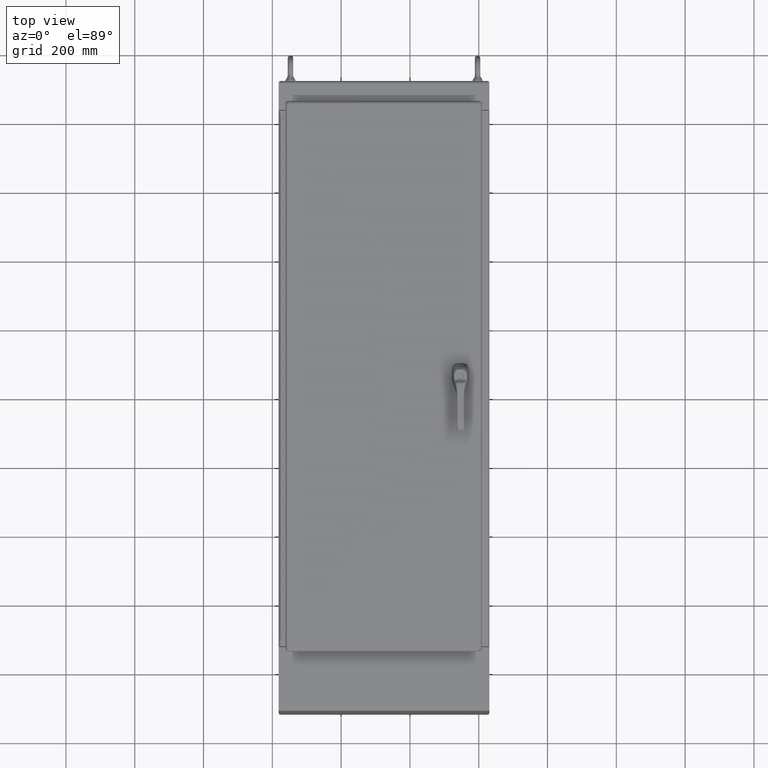
[diagram: clean part render]
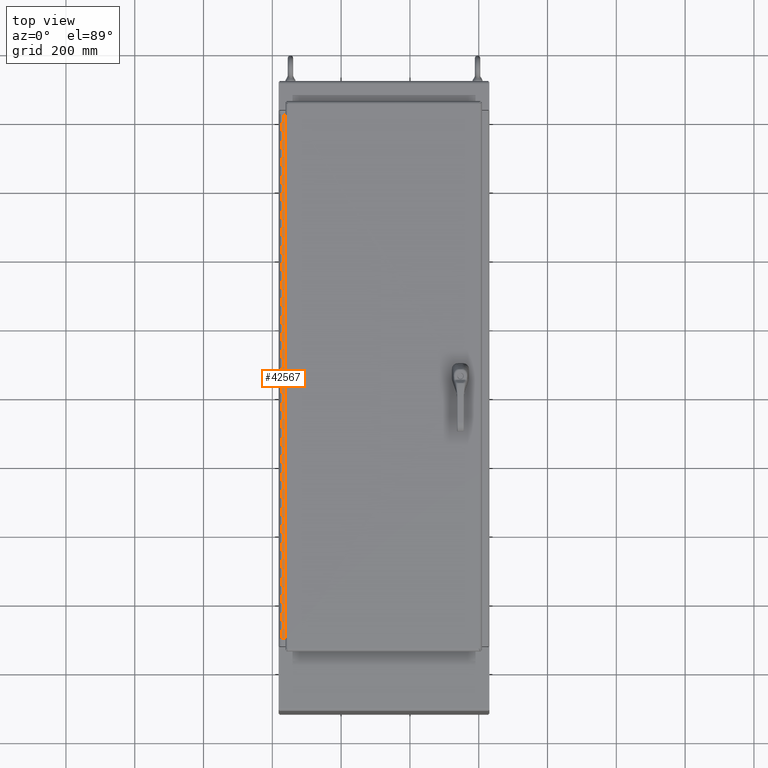
[diagram: same view with one face highlighted and labeled with its STEP entity id]
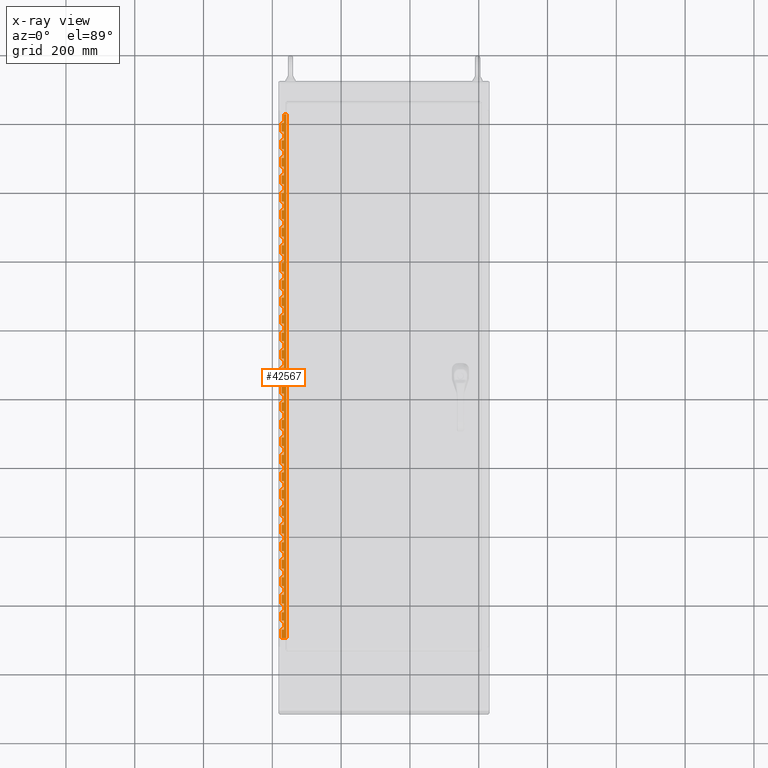
[diagram: x-ray of the same camera — body ghosted, the highlighted face saturated]
A machine part, top view. The second image highlights one B-rep face of the part: STEP entity #42567.
The next image is the same camera in x-ray: the body ghosted, the highlighted face saturated — about 0% of this face is hidden behind the body in this view.
In plain terms, the highlighted planar face has unit normal (0, -0, 1).
Its self-contained STEP definition (entity closure, byte-faithful):
#2580=PLANE('',#46464);
#3881=FACE_OUTER_BOUND('',#6546,.T.);
#6546=EDGE_LOOP('',(#31092,#31093,#31094,#31095,#31096,#31097,#31098,#31099,
#31100,#31101,#31102,#31103,#31104,#31105,#31106,#31107,#31108,#31109,#31110,
#31111,#31112,#31113,#31114,#31115,#31116,#31117,#31118,#31119,#31120,#31121,
#31122,#31123,#31124,#31125,#31126,#31127,#31128,#31129,#31130,#31131,#31132,
#31133,#31134,#31135,#31136,#31137,#31138,#31139,#31140,#31141,#31142,#31143,
#31144,#31145,#31146,#31147,#31148,#31149,#31150,#31151,#31152,#31153,#31154,
#31155,#31156,#31157,#31158,#31159,#31160,#31161,#31162,#31163,#31164,#31165,
#31166,#31167,#31168,#31169,#31170,#31171,#31172,#31173,#31174,#31175,#31176,
#31177,#31178,#31179,#31180,#31181,#31182,#31183,#31184,#31185,#31186,#31187,
#31188,#31189,#31190,#31191,#31192,#31193,#31194,#31195,#31196,#31197,#31198,
#31199,#31200,#31201,#31202,#31203,#31204,#31205,#31206,#31207,#31208,#31209,
#31210,#31211,#31212,#31213));
#12074=LINE('',#66152,#15366);
#12077=LINE('',#66158,#15369);
#12081=LINE('',#66173,#15373);
#12084=LINE('',#66181,#15376);
#12087=LINE('',#66187,#15379);
#12091=LINE('',#66202,#15383);
#12094=LINE('',#66210,#15386);
#12097=LINE('',#66216,#15389);
#12101=LINE('',#66231,#15393);
#12104=LINE('',#66239,#15396);
#12107=LINE('',#66245,#15399);
#12111=LINE('',#66260,#15403);
#12114=LINE('',#66268,#15406);
#12117=LINE('',#66274,#15409);
#12121=LINE('',#66289,#15413);
#12124=LINE('',#66297,#15416);
#12127=LINE('',#66303,#15419);
#12131=LINE('',#66318,#15423);
#12134=LINE('',#66326,#15426);
#12137=LINE('',#66332,#15429);
#12141=LINE('',#66347,#15433);
#12144=LINE('',#66355,#15436);
#12147=LINE('',#66361,#15439);
#12151=LINE('',#66376,#15443);
#12154=LINE('',#66384,#15446);
#12157=LINE('',#66390,#15449);
#12161=LINE('',#66405,#15453);
#12164=LINE('',#66413,#15456);
#12167=LINE('',#66419,#15459);
#12171=LINE('',#66434,#15463);
#12174=LINE('',#66442,#15466);
#12177=LINE('',#66448,#15469);
#12181=LINE('',#66463,#15473);
#12184=LINE('',#66471,#15476);
#12187=LINE('',#66477,#15479);
#12191=LINE('',#66492,#15483);
#12194=LINE('',#66500,#15486);
#12197=LINE('',#66506,#15489);
#12201=LINE('',#66521,#15493);
#12204=LINE('',#66529,#15496);
#12207=LINE('',#66535,#15499);
#12211=LINE('',#66550,#15503);
#12214=LINE('',#66558,#15506);
#12217=LINE('',#66564,#15509);
#12221=LINE('',#66579,#15513);
#12224=LINE('',#66587,#15516);
#12227=LINE('',#66593,#15519);
#12231=LINE('',#66608,#15523);
#12234=LINE('',#66616,#15526);
#12237=LINE('',#66622,#15529);
#12241=LINE('',#66637,#15533);
#12244=LINE('',#66645,#15536);
#12247=LINE('',#66651,#15539);
#12251=LINE('',#66666,#15543);
#12254=LINE('',#66674,#15546);
#12257=LINE('',#66680,#15549);
#12261=LINE('',#66695,#15553);
#12264=LINE('',#66703,#15556);
#12267=LINE('',#66709,#15559);
#12271=LINE('',#66724,#15563);
#12274=LINE('',#66732,#15566);
#12277=LINE('',#66738,#15569);
#12281=LINE('',#66753,#15573);
#12284=LINE('',#66761,#15576);
#12287=LINE('',#66767,#15579);
#12291=LINE('',#66782,#15583);
#12294=LINE('',#66790,#15586);
#12297=LINE('',#66796,#15589);
#12301=LINE('',#66811,#15593);
#12304=LINE('',#66819,#15596);
#12307=LINE('',#66825,#15599);
#12311=LINE('',#66840,#15603);
#12314=LINE('',#66848,#15606);
#12317=LINE('',#66854,#15609);
#12321=LINE('',#66869,#15613);
#12324=LINE('',#66877,#15616);
#12327=LINE('',#66883,#15619);
#12331=LINE('',#66898,#15623);
#12334=LINE('',#66906,#15626);
#12337=LINE('',#66912,#15629);
#12341=LINE('',#66927,#15633);
#12344=LINE('',#66935,#15636);
#12347=LINE('',#66941,#15639);
#12351=LINE('',#66956,#15643);
#12354=LINE('',#66964,#15646);
#12357=LINE('',#66970,#15649);
#12361=LINE('',#66985,#15653);
#12456=LINE('',#67150,#15748);
#12457=LINE('',#67153,#15749);
#12458=LINE('',#67155,#15750);
#12459=LINE('',#67157,#15751);
#12460=LINE('',#67159,#15752);
#12461=LINE('',#67161,#15753);
#12462=LINE('',#67163,#15754);
#12463=LINE('',#67165,#15755);
#12464=LINE('',#67167,#15756);
#12465=LINE('',#67169,#15757);
#12466=LINE('',#67171,#15758);
#12467=LINE('',#67173,#15759);
#12468=LINE('',#67175,#15760);
#12469=LINE('',#67177,#15761);
#12470=LINE('',#67179,#15762);
#12471=LINE('',#67181,#15763);
#12472=LINE('',#67183,#15764);
#12473=LINE('',#67185,#15765);
#12474=LINE('',#67187,#15766);
#12475=LINE('',#67189,#15767);
#12476=LINE('',#67191,#15768);
#12477=LINE('',#67193,#15769);
#12478=LINE('',#67195,#15770);
#12479=LINE('',#67197,#15771);
#12480=LINE('',#67199,#15772);
#12481=LINE('',#67201,#15773);
#12482=LINE('',#67203,#15774);
#12483=LINE('',#67205,#15775);
#12485=LINE('',#67211,#15777);
#12486=LINE('',#67213,#15778);
#12487=LINE('',#67216,#15779);
#12489=LINE('',#67220,#15781);
#12503=LINE('',#67256,#15795);
#12504=LINE('',#67259,#15796);
#12505=LINE('',#67260,#15797);
#15366=VECTOR('',#52578,0.393700787401575);
#15369=VECTOR('',#52583,0.393700787401575);
#15373=VECTOR('',#52597,0.393700787401575);
#15376=VECTOR('',#52602,0.393700787401575);
#15379=VECTOR('',#52607,0.393700787401575);
#15383=VECTOR('',#52621,0.393700787401575);
#15386=VECTOR('',#52626,0.393700787401575);
#15389=VECTOR('',#52631,0.393700787401575);
#15393=VECTOR('',#52645,0.393700787401575);
#15396=VECTOR('',#52650,0.393700787401575);
#15399=VECTOR('',#52655,0.393700787401575);
#15403=VECTOR('',#52669,0.393700787401575);
#15406=VECTOR('',#52674,0.393700787401575);
#15409=VECTOR('',#52679,0.393700787401575);
#15413=VECTOR('',#52693,0.393700787401575);
#15416=VECTOR('',#52698,0.393700787401575);
#15419=VECTOR('',#52703,0.393700787401575);
#15423=VECTOR('',#52717,0.393700787401575);
#15426=VECTOR('',#52722,0.393700787401575);
#15429=VECTOR('',#52727,0.393700787401575);
#15433=VECTOR('',#52741,0.393700787401575);
#15436=VECTOR('',#52746,0.393700787401575);
#15439=VECTOR('',#52751,0.393700787401575);
#15443=VECTOR('',#52765,0.393700787401575);
#15446=VECTOR('',#52770,0.393700787401575);
#15449=VECTOR('',#52775,0.393700787401575);
#15453=VECTOR('',#52789,0.393700787401575);
#15456=VECTOR('',#52794,0.393700787401575);
#15459=VECTOR('',#52799,0.393700787401575);
#15463=VECTOR('',#52813,0.393700787401575);
#15466=VECTOR('',#52818,0.393700787401575);
#15469=VECTOR('',#52823,0.393700787401575);
#15473=VECTOR('',#52837,0.393700787401575);
#15476=VECTOR('',#52842,0.393700787401575);
#15479=VECTOR('',#52847,0.393700787401575);
#15483=VECTOR('',#52861,0.393700787401575);
#15486=VECTOR('',#52866,0.393700787401575);
#15489=VECTOR('',#52871,0.393700787401575);
#15493=VECTOR('',#52885,0.393700787401575);
#15496=VECTOR('',#52890,0.393700787401575);
#15499=VECTOR('',#52895,0.393700787401575);
#15503=VECTOR('',#52909,0.393700787401575);
#15506=VECTOR('',#52914,0.393700787401575);
#15509=VECTOR('',#52919,0.393700787401575);
#15513=VECTOR('',#52933,0.393700787401575);
#15516=VECTOR('',#52938,0.393700787401575);
#15519=VECTOR('',#52943,0.393700787401575);
#15523=VECTOR('',#52957,0.393700787401575);
#15526=VECTOR('',#52962,0.393700787401575);
#15529=VECTOR('',#52967,0.393700787401575);
#15533=VECTOR('',#52981,0.393700787401575);
#15536=VECTOR('',#52986,0.393700787401575);
#15539=VECTOR('',#52991,0.393700787401575);
#15543=VECTOR('',#53005,0.393700787401575);
#15546=VECTOR('',#53010,0.393700787401575);
#15549=VECTOR('',#53015,0.393700787401575);
#15553=VECTOR('',#53029,0.393700787401575);
#15556=VECTOR('',#53034,0.393700787401575);
#15559=VECTOR('',#53039,0.393700787401575);
#15563=VECTOR('',#53053,0.393700787401575);
#15566=VECTOR('',#53058,0.393700787401575);
#15569=VECTOR('',#53063,0.393700787401575);
#15573=VECTOR('',#53077,0.393700787401575);
#15576=VECTOR('',#53082,0.393700787401575);
#15579=VECTOR('',#53087,0.393700787401575);
#15583=VECTOR('',#53101,0.393700787401575);
#15586=VECTOR('',#53106,0.393700787401575);
#15589=VECTOR('',#53111,0.393700787401575);
#15593=VECTOR('',#53125,0.393700787401575);
#15596=VECTOR('',#53130,0.393700787401575);
#15599=VECTOR('',#53135,0.393700787401575);
#15603=VECTOR('',#53149,0.393700787401575);
#15606=VECTOR('',#53154,0.393700787401575);
#15609=VECTOR('',#53159,0.393700787401575);
#15613=VECTOR('',#53173,0.393700787401575);
#15616=VECTOR('',#53178,0.393700787401575);
#15619=VECTOR('',#53183,0.393700787401575);
#15623=VECTOR('',#53197,0.393700787401575);
#15626=VECTOR('',#53202,0.393700787401575);
#15629=VECTOR('',#53207,0.393700787401575);
#15633=VECTOR('',#53221,0.393700787401575);
#15636=VECTOR('',#53226,0.393700787401575);
#15639=VECTOR('',#53231,0.393700787401575);
#15643=VECTOR('',#53245,0.393700787401575);
#15646=VECTOR('',#53250,0.393700787401575);
#15649=VECTOR('',#53255,0.393700787401575);
#15653=VECTOR('',#53269,0.393700787401575);
#15748=VECTOR('',#53486,0.393700787401575);
#15749=VECTOR('',#53491,0.393700787401575);
#15750=VECTOR('',#53494,0.393700787401575);
#15751=VECTOR('',#53497,0.393700787401575);
#15752=VECTOR('',#53500,0.393700787401575);
#15753=VECTOR('',#53503,0.393700787401575);
#15754=VECTOR('',#53506,0.393700787401575);
#15755=VECTOR('',#53509,0.393700787401575);
#15756=VECTOR('',#53512,0.393700787401575);
#15757=VECTOR('',#53515,0.393700787401575);
#15758=VECTOR('',#53518,0.393700787401575);
#15759=VECTOR('',#53521,0.393700787401575);
#15760=VECTOR('',#53524,0.393700787401575);
#15761=VECTOR('',#53527,0.393700787401575);
#15762=VECTOR('',#53530,0.393700787401575);
#15763=VECTOR('',#53533,0.393700787401575);
#15764=VECTOR('',#53536,0.393700787401575);
#15765=VECTOR('',#53539,0.393700787401575);
#15766=VECTOR('',#53542,0.393700787401575);
#15767=VECTOR('',#53545,0.393700787401575);
#15768=VECTOR('',#53548,0.393700787401575);
#15769=VECTOR('',#53551,0.393700787401575);
#15770=VECTOR('',#53554,0.393700787401575);
#15771=VECTOR('',#53557,0.393700787401575);
#15772=VECTOR('',#53560,0.393700787401575);
#15773=VECTOR('',#53563,0.393700787401575);
#15774=VECTOR('',#53566,0.393700787401575);
#15775=VECTOR('',#53569,0.393700787401575);
#15777=VECTOR('',#53575,0.393700787401575);
#15778=VECTOR('',#53578,0.393700787401575);
#15779=VECTOR('',#53581,0.393700787401575);
#15781=VECTOR('',#53585,0.393700787401575);
#15795=VECTOR('',#53621,0.393700787401575);
#15796=VECTOR('',#53626,0.393700787401575);
#15797=VECTOR('',#53627,0.393700787401575);
#18496=VERTEX_POINT('',#66149);
#18497=VERTEX_POINT('',#66151);
#18499=VERTEX_POINT('',#66157);
#18505=VERTEX_POINT('',#66171);
#18508=VERTEX_POINT('',#66178);
#18509=VERTEX_POINT('',#66180);
#18511=VERTEX_POINT('',#66186);
#18517=VERTEX_POINT('',#66200);
#18520=VERTEX_POINT('',#66207);
#18521=VERTEX_POINT('',#66209);
#18523=VERTEX_POINT('',#66215);
#18529=VERTEX_POINT('',#66229);
#18532=VERTEX_POINT('',#66236);
#18533=VERTEX_POINT('',#66238);
#18535=VERTEX_POINT('',#66244);
#18541=VERTEX_POINT('',#66258);
#18544=VERTEX_POINT('',#66265);
#18545=VERTEX_POINT('',#66267);
#18547=VERTEX_POINT('',#66273);
#18553=VERTEX_POINT('',#66287);
#18556=VERTEX_POINT('',#66294);
#18557=VERTEX_POINT('',#66296);
#18559=VERTEX_POINT('',#66302);
#18565=VERTEX_POINT('',#66316);
#18568=VERTEX_POINT('',#66323);
#18569=VERTEX_POINT('',#66325);
#18571=VERTEX_POINT('',#66331);
#18577=VERTEX_POINT('',#66345);
#18580=VERTEX_POINT('',#66352);
#18581=VERTEX_POINT('',#66354);
#18583=VERTEX_POINT('',#66360);
#18589=VERTEX_POINT('',#66374);
#18592=VERTEX_POINT('',#66381);
#18593=VERTEX_POINT('',#66383);
#18595=VERTEX_POINT('',#66389);
#18601=VERTEX_POINT('',#66403);
#18604=VERTEX_POINT('',#66410);
#18605=VERTEX_POINT('',#66412);
#18607=VERTEX_POINT('',#66418);
#18613=VERTEX_POINT('',#66432);
#18616=VERTEX_POINT('',#66439);
#18617=VERTEX_POINT('',#66441);
#18619=VERTEX_POINT('',#66447);
#18625=VERTEX_POINT('',#66461);
#18628=VERTEX_POINT('',#66468);
#18629=VERTEX_POINT('',#66470);
#18631=VERTEX_POINT('',#66476);
#18637=VERTEX_POINT('',#66490);
#18640=VERTEX_POINT('',#66497);
#18641=VERTEX_POINT('',#66499);
#18643=VERTEX_POINT('',#66505);
#18649=VERTEX_POINT('',#66519);
#18652=VERTEX_POINT('',#66526);
#18653=VERTEX_POINT('',#66528);
#18655=VERTEX_POINT('',#66534);
#18661=VERTEX_POINT('',#66548);
#18664=VERTEX_POINT('',#66555);
#18665=VERTEX_POINT('',#66557);
#18667=VERTEX_POINT('',#66563);
#18673=VERTEX_POINT('',#66577);
#18676=VERTEX_POINT('',#66584);
#18677=VERTEX_POINT('',#66586);
#18679=VERTEX_POINT('',#66592);
#18685=VERTEX_POINT('',#66606);
#18688=VERTEX_POINT('',#66613);
#18689=VERTEX_POINT('',#66615);
#18691=VERTEX_POINT('',#66621);
#18697=VERTEX_POINT('',#66635);
#18700=VERTEX_POINT('',#66642);
#18701=VERTEX_POINT('',#66644);
#18703=VERTEX_POINT('',#66650);
#18709=VERTEX_POINT('',#66664);
#18712=VERTEX_POINT('',#66671);
#18713=VERTEX_POINT('',#66673);
#18715=VERTEX_POINT('',#66679);
#18721=VERTEX_POINT('',#66693);
#18724=VERTEX_POINT('',#66700);
#18725=VERTEX_POINT('',#66702);
#18727=VERTEX_POINT('',#66708);
#18733=VERTEX_POINT('',#66722);
#18736=VERTEX_POINT('',#66729);
#18737=VERTEX_POINT('',#66731);
#18739=VERTEX_POINT('',#66737);
#18745=VERTEX_POINT('',#66751);
#18748=VERTEX_POINT('',#66758);
#18749=VERTEX_POINT('',#66760);
#18751=VERTEX_POINT('',#66766);
#18757=VERTEX_POINT('',#66780);
#18760=VERTEX_POINT('',#66787);
#18761=VERTEX_POINT('',#66789);
#18763=VERTEX_POINT('',#66795);
#18769=VERTEX_POINT('',#66809);
#18772=VERTEX_POINT('',#66816);
#18773=VERTEX_POINT('',#66818);
#18775=VERTEX_POINT('',#66824);
#18781=VERTEX_POINT('',#66838);
#18784=VERTEX_POINT('',#66845);
#18785=VERTEX_POINT('',#66847);
#18787=VERTEX_POINT('',#66853);
#18793=VERTEX_POINT('',#66867);
#18796=VERTEX_POINT('',#66874);
#18797=VERTEX_POINT('',#66876);
#18799=VERTEX_POINT('',#66882);
#18805=VERTEX_POINT('',#66896);
#18808=VERTEX_POINT('',#66903);
#18809=VERTEX_POINT('',#66905);
#18811=VERTEX_POINT('',#66911);
#18817=VERTEX_POINT('',#66925);
#18820=VERTEX_POINT('',#66932);
#18821=VERTEX_POINT('',#66934);
#18823=VERTEX_POINT('',#66940);
#18829=VERTEX_POINT('',#66954);
#18832=VERTEX_POINT('',#66961);
#18833=VERTEX_POINT('',#66963);
#18835=VERTEX_POINT('',#66969);
#18841=VERTEX_POINT('',#66983);
#18850=VERTEX_POINT('',#67149);
#18852=VERTEX_POINT('',#67209);
#18853=VERTEX_POINT('',#67215);
#18854=VERTEX_POINT('',#67219);
#18864=VERTEX_POINT('',#67253);
#18865=VERTEX_POINT('',#67255);
#22804=EDGE_CURVE('',#18497,#18496,#12074,.T.);
#22807=EDGE_CURVE('',#18499,#18497,#12077,.T.);
#22815=EDGE_CURVE('',#18496,#18505,#12081,.T.);
#22818=EDGE_CURVE('',#18509,#18508,#12084,.T.);
#22821=EDGE_CURVE('',#18511,#18509,#12087,.T.);
#22829=EDGE_CURVE('',#18508,#18517,#12091,.T.);
#22832=EDGE_CURVE('',#18521,#18520,#12094,.T.);
#22835=EDGE_CURVE('',#18523,#18521,#12097,.T.);
#22843=EDGE_CURVE('',#18520,#18529,#12101,.T.);
#22846=EDGE_CURVE('',#18533,#18532,#12104,.T.);
#22849=EDGE_CURVE('',#18535,#18533,#12107,.T.);
#22857=EDGE_CURVE('',#18532,#18541,#12111,.T.);
#22860=EDGE_CURVE('',#18545,#18544,#12114,.T.);
#22863=EDGE_CURVE('',#18547,#18545,#12117,.T.);
#22871=EDGE_CURVE('',#18544,#18553,#12121,.T.);
#22874=EDGE_CURVE('',#18557,#18556,#12124,.T.);
#22877=EDGE_CURVE('',#18559,#18557,#12127,.T.);
#22885=EDGE_CURVE('',#18556,#18565,#12131,.T.);
#22888=EDGE_CURVE('',#18569,#18568,#12134,.T.);
#22891=EDGE_CURVE('',#18571,#18569,#12137,.T.);
#22899=EDGE_CURVE('',#18568,#18577,#12141,.T.);
#22902=EDGE_CURVE('',#18581,#18580,#12144,.T.);
#22905=EDGE_CURVE('',#18583,#18581,#12147,.T.);
#22913=EDGE_CURVE('',#18580,#18589,#12151,.T.);
#22916=EDGE_CURVE('',#18593,#18592,#12154,.T.);
#22919=EDGE_CURVE('',#18595,#18593,#12157,.T.);
#22927=EDGE_CURVE('',#18592,#18601,#12161,.T.);
#22930=EDGE_CURVE('',#18605,#18604,#12164,.T.);
#22933=EDGE_CURVE('',#18607,#18605,#12167,.T.);
#22941=EDGE_CURVE('',#18604,#18613,#12171,.T.);
#22944=EDGE_CURVE('',#18617,#18616,#12174,.T.);
#22947=EDGE_CURVE('',#18619,#18617,#12177,.T.);
#22955=EDGE_CURVE('',#18616,#18625,#12181,.T.);
#22958=EDGE_CURVE('',#18629,#18628,#12184,.T.);
#22961=EDGE_CURVE('',#18631,#18629,#12187,.T.);
#22969=EDGE_CURVE('',#18628,#18637,#12191,.T.);
#22972=EDGE_CURVE('',#18641,#18640,#12194,.T.);
#22975=EDGE_CURVE('',#18643,#18641,#12197,.T.);
#22983=EDGE_CURVE('',#18640,#18649,#12201,.T.);
#22986=EDGE_CURVE('',#18653,#18652,#12204,.T.);
#22989=EDGE_CURVE('',#18655,#18653,#12207,.T.);
#22997=EDGE_CURVE('',#18652,#18661,#12211,.T.);
#23000=EDGE_CURVE('',#18665,#18664,#12214,.T.);
#23003=EDGE_CURVE('',#18667,#18665,#12217,.T.);
#23011=EDGE_CURVE('',#18664,#18673,#12221,.T.);
#23014=EDGE_CURVE('',#18677,#18676,#12224,.T.);
#23017=EDGE_CURVE('',#18679,#18677,#12227,.T.);
#23025=EDGE_CURVE('',#18676,#18685,#12231,.T.);
#23028=EDGE_CURVE('',#18689,#18688,#12234,.T.);
#23031=EDGE_CURVE('',#18691,#18689,#12237,.T.);
#23039=EDGE_CURVE('',#18688,#18697,#12241,.T.);
#23042=EDGE_CURVE('',#18701,#18700,#12244,.T.);
#23045=EDGE_CURVE('',#18703,#18701,#12247,.T.);
#23053=EDGE_CURVE('',#18700,#18709,#12251,.T.);
#23056=EDGE_CURVE('',#18713,#18712,#12254,.T.);
#23059=EDGE_CURVE('',#18715,#18713,#12257,.T.);
#23067=EDGE_CURVE('',#18712,#18721,#12261,.T.);
#23070=EDGE_CURVE('',#18725,#18724,#12264,.T.);
#23073=EDGE_CURVE('',#18727,#18725,#12267,.T.);
#23081=EDGE_CURVE('',#18724,#18733,#12271,.T.);
#23084=EDGE_CURVE('',#18737,#18736,#12274,.T.);
#23087=EDGE_CURVE('',#18739,#18737,#12277,.T.);
#23095=EDGE_CURVE('',#18736,#18745,#12281,.T.);
#23098=EDGE_CURVE('',#18749,#18748,#12284,.T.);
#23101=EDGE_CURVE('',#18751,#18749,#12287,.T.);
#23109=EDGE_CURVE('',#18748,#18757,#12291,.T.);
#23112=EDGE_CURVE('',#18761,#18760,#12294,.T.);
#23115=EDGE_CURVE('',#18763,#18761,#12297,.T.);
#23123=EDGE_CURVE('',#18760,#18769,#12301,.T.);
#23126=EDGE_CURVE('',#18773,#18772,#12304,.T.);
#23129=EDGE_CURVE('',#18775,#18773,#12307,.T.);
#23137=EDGE_CURVE('',#18772,#18781,#12311,.T.);
#23140=EDGE_CURVE('',#18785,#18784,#12314,.T.);
#23143=EDGE_CURVE('',#18787,#18785,#12317,.T.);
#23151=EDGE_CURVE('',#18784,#18793,#12321,.T.);
#23154=EDGE_CURVE('',#18797,#18796,#12324,.T.);
#23157=EDGE_CURVE('',#18799,#18797,#12327,.T.);
#23165=EDGE_CURVE('',#18796,#18805,#12331,.T.);
#23168=EDGE_CURVE('',#18809,#18808,#12334,.T.);
#23171=EDGE_CURVE('',#18811,#18809,#12337,.T.);
#23179=EDGE_CURVE('',#18808,#18817,#12341,.T.);
#23182=EDGE_CURVE('',#18821,#18820,#12344,.T.);
#23185=EDGE_CURVE('',#18823,#18821,#12347,.T.);
#23193=EDGE_CURVE('',#18820,#18829,#12351,.T.);
#23196=EDGE_CURVE('',#18833,#18832,#12354,.T.);
#23199=EDGE_CURVE('',#18835,#18833,#12357,.T.);
#23207=EDGE_CURVE('',#18832,#18841,#12361,.T.);
#23303=EDGE_CURVE('',#18835,#18850,#12456,.T.);
#23305=EDGE_CURVE('',#18823,#18841,#12457,.T.);
#23306=EDGE_CURVE('',#18811,#18829,#12458,.T.);
#23307=EDGE_CURVE('',#18799,#18817,#12459,.T.);
#23308=EDGE_CURVE('',#18787,#18805,#12460,.T.);
#23309=EDGE_CURVE('',#18775,#18793,#12461,.T.);
#23310=EDGE_CURVE('',#18763,#18781,#12462,.T.);
#23311=EDGE_CURVE('',#18751,#18769,#12463,.T.);
#23312=EDGE_CURVE('',#18739,#18757,#12464,.T.);
#23313=EDGE_CURVE('',#18727,#18745,#12465,.T.);
#23314=EDGE_CURVE('',#18715,#18733,#12466,.T.);
#23315=EDGE_CURVE('',#18703,#18721,#12467,.T.);
#23316=EDGE_CURVE('',#18691,#18709,#12468,.T.);
#23317=EDGE_CURVE('',#18679,#18697,#12469,.T.);
#23318=EDGE_CURVE('',#18667,#18685,#12470,.T.);
#23319=EDGE_CURVE('',#18655,#18673,#12471,.T.);
#23320=EDGE_CURVE('',#18643,#18661,#12472,.T.);
#23321=EDGE_CURVE('',#18631,#18649,#12473,.T.);
#23322=EDGE_CURVE('',#18619,#18637,#12474,.T.);
#23323=EDGE_CURVE('',#18607,#18625,#12475,.T.);
#23324=EDGE_CURVE('',#18595,#18613,#12476,.T.);
#23325=EDGE_CURVE('',#18583,#18601,#12477,.T.);
#23326=EDGE_CURVE('',#18571,#18589,#12478,.T.);
#23327=EDGE_CURVE('',#18559,#18577,#12479,.T.);
#23328=EDGE_CURVE('',#18547,#18565,#12480,.T.);
#23329=EDGE_CURVE('',#18535,#18553,#12481,.T.);
#23330=EDGE_CURVE('',#18523,#18541,#12482,.T.);
#23331=EDGE_CURVE('',#18511,#18529,#12483,.T.);
#23334=EDGE_CURVE('',#18852,#18505,#12485,.T.);
#23335=EDGE_CURVE('',#18499,#18517,#12486,.T.);
#23336=EDGE_CURVE('',#18853,#18850,#12487,.T.);
#23338=EDGE_CURVE('',#18854,#18853,#12489,.T.);
#23356=EDGE_CURVE('',#18865,#18864,#12503,.T.);
#23358=EDGE_CURVE('',#18852,#18865,#12504,.T.);
#23359=EDGE_CURVE('',#18864,#18854,#12505,.T.);
#31092=ORIENTED_EDGE('',*,*,#22815,.T.);
#31093=ORIENTED_EDGE('',*,*,#23334,.F.);
#31094=ORIENTED_EDGE('',*,*,#23358,.T.);
#31095=ORIENTED_EDGE('',*,*,#23356,.T.);
#31096=ORIENTED_EDGE('',*,*,#23359,.T.);
#31097=ORIENTED_EDGE('',*,*,#23338,.T.);
#31098=ORIENTED_EDGE('',*,*,#23336,.T.);
#31099=ORIENTED_EDGE('',*,*,#23303,.F.);
#31100=ORIENTED_EDGE('',*,*,#23199,.T.);
#31101=ORIENTED_EDGE('',*,*,#23196,.T.);
#31102=ORIENTED_EDGE('',*,*,#23207,.T.);
#31103=ORIENTED_EDGE('',*,*,#23305,.F.);
#31104=ORIENTED_EDGE('',*,*,#23185,.T.);
#31105=ORIENTED_EDGE('',*,*,#23182,.T.);
#31106=ORIENTED_EDGE('',*,*,#23193,.T.);
#31107=ORIENTED_EDGE('',*,*,#23306,.F.);
#31108=ORIENTED_EDGE('',*,*,#23171,.T.);
#31109=ORIENTED_EDGE('',*,*,#23168,.T.);
#31110=ORIENTED_EDGE('',*,*,#23179,.T.);
#31111=ORIENTED_EDGE('',*,*,#23307,.F.);
#31112=ORIENTED_EDGE('',*,*,#23157,.T.);
#31113=ORIENTED_EDGE('',*,*,#23154,.T.);
#31114=ORIENTED_EDGE('',*,*,#23165,.T.);
#31115=ORIENTED_EDGE('',*,*,#23308,.F.);
#31116=ORIENTED_EDGE('',*,*,#23143,.T.);
#31117=ORIENTED_EDGE('',*,*,#23140,.T.);
#31118=ORIENTED_EDGE('',*,*,#23151,.T.);
#31119=ORIENTED_EDGE('',*,*,#23309,.F.);
#31120=ORIENTED_EDGE('',*,*,#23129,.T.);
#31121=ORIENTED_EDGE('',*,*,#23126,.T.);
#31122=ORIENTED_EDGE('',*,*,#23137,.T.);
#31123=ORIENTED_EDGE('',*,*,#23310,.F.);
#31124=ORIENTED_EDGE('',*,*,#23115,.T.);
#31125=ORIENTED_EDGE('',*,*,#23112,.T.);
#31126=ORIENTED_EDGE('',*,*,#23123,.T.);
#31127=ORIENTED_EDGE('',*,*,#23311,.F.);
#31128=ORIENTED_EDGE('',*,*,#23101,.T.);
#31129=ORIENTED_EDGE('',*,*,#23098,.T.);
#31130=ORIENTED_EDGE('',*,*,#23109,.T.);
#31131=ORIENTED_EDGE('',*,*,#23312,.F.);
#31132=ORIENTED_EDGE('',*,*,#23087,.T.);
#31133=ORIENTED_EDGE('',*,*,#23084,.T.);
#31134=ORIENTED_EDGE('',*,*,#23095,.T.);
#31135=ORIENTED_EDGE('',*,*,#23313,.F.);
#31136=ORIENTED_EDGE('',*,*,#23073,.T.);
#31137=ORIENTED_EDGE('',*,*,#23070,.T.);
#31138=ORIENTED_EDGE('',*,*,#23081,.T.);
#31139=ORIENTED_EDGE('',*,*,#23314,.F.);
#31140=ORIENTED_EDGE('',*,*,#23059,.T.);
#31141=ORIENTED_EDGE('',*,*,#23056,.T.);
#31142=ORIENTED_EDGE('',*,*,#23067,.T.);
#31143=ORIENTED_EDGE('',*,*,#23315,.F.);
#31144=ORIENTED_EDGE('',*,*,#23045,.T.);
#31145=ORIENTED_EDGE('',*,*,#23042,.T.);
#31146=ORIENTED_EDGE('',*,*,#23053,.T.);
#31147=ORIENTED_EDGE('',*,*,#23316,.F.);
#31148=ORIENTED_EDGE('',*,*,#23031,.T.);
#31149=ORIENTED_EDGE('',*,*,#23028,.T.);
#31150=ORIENTED_EDGE('',*,*,#23039,.T.);
#31151=ORIENTED_EDGE('',*,*,#23317,.F.);
#31152=ORIENTED_EDGE('',*,*,#23017,.T.);
#31153=ORIENTED_EDGE('',*,*,#23014,.T.);
#31154=ORIENTED_EDGE('',*,*,#23025,.T.);
#31155=ORIENTED_EDGE('',*,*,#23318,.F.);
#31156=ORIENTED_EDGE('',*,*,#23003,.T.);
#31157=ORIENTED_EDGE('',*,*,#23000,.T.);
#31158=ORIENTED_EDGE('',*,*,#23011,.T.);
#31159=ORIENTED_EDGE('',*,*,#23319,.F.);
#31160=ORIENTED_EDGE('',*,*,#22989,.T.);
#31161=ORIENTED_EDGE('',*,*,#22986,.T.);
#31162=ORIENTED_EDGE('',*,*,#22997,.T.);
#31163=ORIENTED_EDGE('',*,*,#23320,.F.);
#31164=ORIENTED_EDGE('',*,*,#22975,.T.);
#31165=ORIENTED_EDGE('',*,*,#22972,.T.);
#31166=ORIENTED_EDGE('',*,*,#22983,.T.);
#31167=ORIENTED_EDGE('',*,*,#23321,.F.);
#31168=ORIENTED_EDGE('',*,*,#22961,.T.);
#31169=ORIENTED_EDGE('',*,*,#22958,.T.);
#31170=ORIENTED_EDGE('',*,*,#22969,.T.);
#31171=ORIENTED_EDGE('',*,*,#23322,.F.);
#31172=ORIENTED_EDGE('',*,*,#22947,.T.);
#31173=ORIENTED_EDGE('',*,*,#22944,.T.);
#31174=ORIENTED_EDGE('',*,*,#22955,.T.);
#31175=ORIENTED_EDGE('',*,*,#23323,.F.);
#31176=ORIENTED_EDGE('',*,*,#22933,.T.);
#31177=ORIENTED_EDGE('',*,*,#22930,.T.);
#31178=ORIENTED_EDGE('',*,*,#22941,.T.);
#31179=ORIENTED_EDGE('',*,*,#23324,.F.);
#31180=ORIENTED_EDGE('',*,*,#22919,.T.);
#31181=ORIENTED_EDGE('',*,*,#22916,.T.);
#31182=ORIENTED_EDGE('',*,*,#22927,.T.);
#31183=ORIENTED_EDGE('',*,*,#23325,.F.);
#31184=ORIENTED_EDGE('',*,*,#22905,.T.);
#31185=ORIENTED_EDGE('',*,*,#22902,.T.);
#31186=ORIENTED_EDGE('',*,*,#22913,.T.);
#31187=ORIENTED_EDGE('',*,*,#23326,.F.);
#31188=ORIENTED_EDGE('',*,*,#22891,.T.);
#31189=ORIENTED_EDGE('',*,*,#22888,.T.);
#31190=ORIENTED_EDGE('',*,*,#22899,.T.);
#31191=ORIENTED_EDGE('',*,*,#23327,.F.);
#31192=ORIENTED_EDGE('',*,*,#22877,.T.);
#31193=ORIENTED_EDGE('',*,*,#22874,.T.);
#31194=ORIENTED_EDGE('',*,*,#22885,.T.);
#31195=ORIENTED_EDGE('',*,*,#23328,.F.);
#31196=ORIENTED_EDGE('',*,*,#22863,.T.);
#31197=ORIENTED_EDGE('',*,*,#22860,.T.);
#31198=ORIENTED_EDGE('',*,*,#22871,.T.);
#31199=ORIENTED_EDGE('',*,*,#23329,.F.);
#31200=ORIENTED_EDGE('',*,*,#22849,.T.);
#31201=ORIENTED_EDGE('',*,*,#22846,.T.);
#31202=ORIENTED_EDGE('',*,*,#22857,.T.);
#31203=ORIENTED_EDGE('',*,*,#23330,.F.);
#31204=ORIENTED_EDGE('',*,*,#22835,.T.);
#31205=ORIENTED_EDGE('',*,*,#22832,.T.);
#31206=ORIENTED_EDGE('',*,*,#22843,.T.);
#31207=ORIENTED_EDGE('',*,*,#23331,.F.);
#31208=ORIENTED_EDGE('',*,*,#22821,.T.);
#31209=ORIENTED_EDGE('',*,*,#22818,.T.);
#31210=ORIENTED_EDGE('',*,*,#22829,.T.);
#31211=ORIENTED_EDGE('',*,*,#23335,.F.);
#31212=ORIENTED_EDGE('',*,*,#22807,.T.);
#31213=ORIENTED_EDGE('',*,*,#22804,.T.);
#42567=ADVANCED_FACE('',(#3881),#2580,.T.);
#46464=AXIS2_PLACEMENT_3D('',#67258,#53624,#53625);
#52578=DIRECTION('',(0.,0.,-1.));
#52583=DIRECTION('',(0.,1.,1.87454773909551E-29));
#52597=DIRECTION('',(0.,-1.,-2.88391959860847E-30));
#52602=DIRECTION('',(0.,0.,-1.));
#52607=DIRECTION('',(0.,1.,1.87454773909551E-29));
#52621=DIRECTION('',(0.,-1.,-2.88391959860847E-30));
#52626=DIRECTION('',(0.,0.,-1.));
#52631=DIRECTION('',(0.,1.,1.87454773909551E-29));
#52645=DIRECTION('',(0.,-1.,-2.88391959860847E-30));
#52650=DIRECTION('',(0.,0.,-1.));
#52655=DIRECTION('',(0.,1.,1.87454773909551E-29));
#52669=DIRECTION('',(0.,-1.,-2.88391959860847E-30));
#52674=DIRECTION('',(0.,0.,-1.));
#52679=DIRECTION('',(0.,1.,1.87454773909551E-29));
#52693=DIRECTION('',(0.,-1.,-2.88391959860847E-30));
#52698=DIRECTION('',(0.,0.,-1.));
#52703=DIRECTION('',(0.,1.,1.87454773909551E-29));
#52717=DIRECTION('',(0.,-1.,-2.88391959860847E-30));
#52722=DIRECTION('',(0.,0.,-1.));
#52727=DIRECTION('',(0.,1.,1.87454773909551E-29));
#52741=DIRECTION('',(0.,-1.,-2.88391959860847E-30));
#52746=DIRECTION('',(0.,0.,-1.));
#52751=DIRECTION('',(0.,1.,1.87454773909551E-29));
#52765=DIRECTION('',(0.,-1.,-2.88391959860847E-30));
#52770=DIRECTION('',(0.,0.,-1.));
#52775=DIRECTION('',(0.,1.,1.87454773909551E-29));
#52789=DIRECTION('',(0.,-1.,-2.88391959860847E-30));
#52794=DIRECTION('',(0.,0.,-1.));
#52799=DIRECTION('',(0.,1.,1.87454773909551E-29));
#52813=DIRECTION('',(0.,-1.,-2.88391959860847E-30));
#52818=DIRECTION('',(0.,0.,-1.));
#52823=DIRECTION('',(0.,1.,1.87454773909551E-29));
#52837=DIRECTION('',(0.,-1.,-2.88391959860847E-30));
#52842=DIRECTION('',(0.,0.,-1.));
#52847=DIRECTION('',(0.,1.,1.87454773909551E-29));
#52861=DIRECTION('',(0.,-1.,-2.88391959860847E-30));
#52866=DIRECTION('',(0.,0.,-1.));
#52871=DIRECTION('',(0.,1.,1.87454773909551E-29));
#52885=DIRECTION('',(0.,-1.,-2.88391959860847E-30));
#52890=DIRECTION('',(0.,0.,-1.));
#52895=DIRECTION('',(0.,1.,1.87454773909551E-29));
#52909=DIRECTION('',(0.,-1.,-2.88391959860847E-30));
#52914=DIRECTION('',(0.,0.,-1.));
#52919=DIRECTION('',(0.,1.,1.87454773909551E-29));
#52933=DIRECTION('',(0.,-1.,-2.88391959860847E-30));
#52938=DIRECTION('',(0.,0.,-1.));
#52943=DIRECTION('',(0.,1.,1.87454773909551E-29));
#52957=DIRECTION('',(0.,-1.,-2.88391959860847E-30));
#52962=DIRECTION('',(0.,0.,-1.));
#52967=DIRECTION('',(0.,1.,1.87454773909551E-29));
#52981=DIRECTION('',(0.,-1.,-2.88391959860847E-30));
#52986=DIRECTION('',(0.,0.,-1.));
#52991=DIRECTION('',(0.,1.,1.87454773909551E-29));
#53005=DIRECTION('',(0.,-1.,-2.88391959860847E-30));
#53010=DIRECTION('',(0.,0.,-1.));
#53015=DIRECTION('',(0.,1.,1.87454773909551E-29));
#53029=DIRECTION('',(0.,-1.,-2.88391959860847E-30));
#53034=DIRECTION('',(0.,0.,-1.));
#53039=DIRECTION('',(0.,1.,1.87454773909551E-29));
#53053=DIRECTION('',(0.,-1.,-2.88391959860847E-30));
#53058=DIRECTION('',(0.,0.,-1.));
#53063=DIRECTION('',(0.,1.,1.87454773909551E-29));
#53077=DIRECTION('',(0.,-1.,-2.88391959860847E-30));
#53082=DIRECTION('',(0.,0.,-1.));
#53087=DIRECTION('',(0.,1.,1.87454773909551E-29));
#53101=DIRECTION('',(0.,-1.,-2.88391959860847E-30));
#53106=DIRECTION('',(0.,0.,-1.));
#53111=DIRECTION('',(0.,1.,1.87454773909551E-29));
#53125=DIRECTION('',(0.,-1.,-2.88391959860847E-30));
#53130=DIRECTION('',(0.,0.,-1.));
#53135=DIRECTION('',(0.,1.,1.87454773909551E-29));
#53149=DIRECTION('',(0.,-1.,-2.88391959860847E-30));
#53154=DIRECTION('',(0.,0.,-1.));
#53159=DIRECTION('',(0.,1.,1.87454773909551E-29));
#53173=DIRECTION('',(0.,-1.,-2.88391959860847E-30));
#53178=DIRECTION('',(0.,0.,-1.));
#53183=DIRECTION('',(0.,1.,1.87454773909551E-29));
#53197=DIRECTION('',(0.,-1.,-2.88391959860847E-30));
#53202=DIRECTION('',(0.,0.,-1.));
#53207=DIRECTION('',(0.,1.,1.87454773909551E-29));
#53221=DIRECTION('',(0.,-1.,-2.88391959860847E-30));
#53226=DIRECTION('',(0.,0.,-1.));
#53231=DIRECTION('',(0.,1.,1.87454773909551E-29));
#53245=DIRECTION('',(0.,-1.,-2.88391959860847E-30));
#53250=DIRECTION('',(0.,0.,-1.));
#53255=DIRECTION('',(0.,1.,1.87454773909551E-29));
#53269=DIRECTION('',(0.,-1.,-2.88391959860847E-30));
#53486=DIRECTION('',(0.,0.,1.));
#53491=DIRECTION('',(0.,0.,1.));
#53494=DIRECTION('',(0.,0.,1.));
#53497=DIRECTION('',(0.,0.,1.));
#53500=DIRECTION('',(0.,0.,1.));
#53503=DIRECTION('',(0.,0.,1.));
#53506=DIRECTION('',(0.,0.,1.));
#53509=DIRECTION('',(0.,0.,1.));
#53512=DIRECTION('',(0.,0.,1.));
#53515=DIRECTION('',(0.,0.,1.));
#53518=DIRECTION('',(0.,0.,1.));
#53521=DIRECTION('',(0.,0.,1.));
#53524=DIRECTION('',(0.,0.,1.));
#53527=DIRECTION('',(0.,0.,1.));
#53530=DIRECTION('',(0.,0.,1.));
#53533=DIRECTION('',(0.,0.,1.));
#53536=DIRECTION('',(0.,0.,1.));
#53539=DIRECTION('',(0.,0.,1.));
#53542=DIRECTION('',(0.,0.,1.));
#53545=DIRECTION('',(0.,0.,1.));
#53548=DIRECTION('',(0.,0.,1.));
#53551=DIRECTION('',(0.,0.,1.));
#53554=DIRECTION('',(0.,0.,1.));
#53557=DIRECTION('',(0.,0.,1.));
#53560=DIRECTION('',(0.,0.,1.));
#53563=DIRECTION('',(0.,0.,1.));
#53566=DIRECTION('',(0.,0.,1.));
#53569=DIRECTION('',(0.,0.,1.));
#53575=DIRECTION('',(0.,0.,1.));
#53578=DIRECTION('',(0.,0.,1.));
#53581=DIRECTION('',(0.,-1.,-2.88391959860847E-30));
#53585=DIRECTION('',(0.,0.,-1.));
#53621=DIRECTION('',(0.,0.,1.));
#53624=DIRECTION('center_axis',(1.,0.,0.));
#53625=DIRECTION('ref_axis',(0.,0.,-1.));
#53626=DIRECTION('',(0.,1.,0.));
#53627=DIRECTION('',(0.,-1.,0.));
#66149=CARTESIAN_POINT('',(0.204,0.246,1.00000000000002));
#66151=CARTESIAN_POINT('',(0.204,0.246,2.00000000000001));
#66152=CARTESIAN_POINT('',(0.204,0.246,1.));
#66157=CARTESIAN_POINT('',(0.204,1.31128703695885E-16,2.00000000000001));
#66158=CARTESIAN_POINT('',(0.204,0.272,2.00000000000002));
#66171=CARTESIAN_POINT('',(0.204,1.31128703695885E-16,1.00000000000001));
#66173=CARTESIAN_POINT('',(0.204,0.272,1.00000000000002));
#66178=CARTESIAN_POINT('',(0.204,0.246,3.00000000000002));
#66180=CARTESIAN_POINT('',(0.204,0.246,4.));
#66181=CARTESIAN_POINT('',(0.204,0.246,2.));
#66186=CARTESIAN_POINT('',(0.204,1.31128703695885E-16,4.));
#66187=CARTESIAN_POINT('',(0.204,0.272,4.00000000000001));
#66200=CARTESIAN_POINT('',(0.204,1.31128703695885E-16,3.00000000000001));
#66202=CARTESIAN_POINT('',(0.204,0.272,3.00000000000002));
#66207=CARTESIAN_POINT('',(0.204,0.246,5.00000000000002));
#66209=CARTESIAN_POINT('',(0.204,0.246,6.00000000000001));
#66210=CARTESIAN_POINT('',(0.204,0.246,3.));
#66215=CARTESIAN_POINT('',(0.204,1.31128703695885E-16,6.00000000000001));
#66216=CARTESIAN_POINT('',(0.204,0.272,6.00000000000002));
#66229=CARTESIAN_POINT('',(0.204,1.31128703695885E-16,5.00000000000001));
#66231=CARTESIAN_POINT('',(0.204,0.272,5.00000000000002));
#66236=CARTESIAN_POINT('',(0.204,0.246,7.00000000000001));
#66238=CARTESIAN_POINT('',(0.204,0.246,8.));
#66239=CARTESIAN_POINT('',(0.204,0.246,4.));
#66244=CARTESIAN_POINT('',(0.204,1.31128703695885E-16,8.));
#66245=CARTESIAN_POINT('',(0.204,0.272,8.00000000000001));
#66258=CARTESIAN_POINT('',(0.204,1.31128703695885E-16,7.));
#66260=CARTESIAN_POINT('',(0.204,0.272,7.00000000000001));
#66265=CARTESIAN_POINT('',(0.204,0.246,9.00000000000002));
#66267=CARTESIAN_POINT('',(0.204,0.246,10.));
#66268=CARTESIAN_POINT('',(0.204,0.246,5.));
#66273=CARTESIAN_POINT('',(0.204,1.31128703695885E-16,10.));
#66274=CARTESIAN_POINT('',(0.204,0.272,10.));
#66287=CARTESIAN_POINT('',(0.204,1.31128703695885E-16,9.00000000000001));
#66289=CARTESIAN_POINT('',(0.204,0.272,9.00000000000002));
#66294=CARTESIAN_POINT('',(0.204,0.246,11.));
#66296=CARTESIAN_POINT('',(0.204,0.246,12.));
#66297=CARTESIAN_POINT('',(0.204,0.246,6.));
#66302=CARTESIAN_POINT('',(0.204,1.31128703695885E-16,12.));
#66303=CARTESIAN_POINT('',(0.204,0.272,12.));
#66316=CARTESIAN_POINT('',(0.204,1.31128703695885E-16,11.));
#66318=CARTESIAN_POINT('',(0.204,0.272,11.));
#66323=CARTESIAN_POINT('',(0.204,0.246,13.));
#66325=CARTESIAN_POINT('',(0.204,0.246,14.));
#66326=CARTESIAN_POINT('',(0.204,0.246,7.));
#66331=CARTESIAN_POINT('',(0.204,1.31128703695885E-16,14.));
#66332=CARTESIAN_POINT('',(0.204,0.272,14.));
#66345=CARTESIAN_POINT('',(0.204,1.31128703695885E-16,13.));
#66347=CARTESIAN_POINT('',(0.204,0.272,13.));
#66352=CARTESIAN_POINT('',(0.204,0.246,15.));
#66354=CARTESIAN_POINT('',(0.204,0.246,16.));
#66355=CARTESIAN_POINT('',(0.204,0.246,8.));
#66360=CARTESIAN_POINT('',(0.204,1.31128703695885E-16,16.));
#66361=CARTESIAN_POINT('',(0.204,0.272,16.));
#66374=CARTESIAN_POINT('',(0.204,1.31128703695885E-16,15.));
#66376=CARTESIAN_POINT('',(0.204,0.272,15.));
#66381=CARTESIAN_POINT('',(0.204,0.246,17.));
#66383=CARTESIAN_POINT('',(0.204,0.246,18.));
#66384=CARTESIAN_POINT('',(0.204,0.246,9.));
#66389=CARTESIAN_POINT('',(0.204,1.31128703695885E-16,18.));
#66390=CARTESIAN_POINT('',(0.204,0.272,18.));
#66403=CARTESIAN_POINT('',(0.204,1.31128703695885E-16,17.));
#66405=CARTESIAN_POINT('',(0.204,0.272,17.));
#66410=CARTESIAN_POINT('',(0.204,0.246,19.));
#66412=CARTESIAN_POINT('',(0.204,0.246,20.));
#66413=CARTESIAN_POINT('',(0.204,0.246,10.));
#66418=CARTESIAN_POINT('',(0.204,1.31128703695885E-16,20.));
#66419=CARTESIAN_POINT('',(0.204,0.272,20.));
#66432=CARTESIAN_POINT('',(0.204,1.31128703695885E-16,19.));
#66434=CARTESIAN_POINT('',(0.204,0.272,19.));
#66439=CARTESIAN_POINT('',(0.204,0.246,21.));
#66441=CARTESIAN_POINT('',(0.204,0.246,22.));
#66442=CARTESIAN_POINT('',(0.204,0.246,11.));
#66447=CARTESIAN_POINT('',(0.204,1.31128703695885E-16,22.));
#66448=CARTESIAN_POINT('',(0.204,0.272,22.));
#66461=CARTESIAN_POINT('',(0.204,1.31128703695885E-16,21.));
#66463=CARTESIAN_POINT('',(0.204,0.272,21.));
#66468=CARTESIAN_POINT('',(0.204,0.246,23.));
#66470=CARTESIAN_POINT('',(0.204,0.246,24.));
#66471=CARTESIAN_POINT('',(0.204,0.246,12.));
#66476=CARTESIAN_POINT('',(0.204,1.31128703695885E-16,24.));
#66477=CARTESIAN_POINT('',(0.204,0.272,24.));
#66490=CARTESIAN_POINT('',(0.204,1.31128703695885E-16,23.));
#66492=CARTESIAN_POINT('',(0.204,0.272,23.));
#66497=CARTESIAN_POINT('',(0.204,0.246,25.));
#66499=CARTESIAN_POINT('',(0.204,0.246,26.));
#66500=CARTESIAN_POINT('',(0.204,0.246,13.));
#66505=CARTESIAN_POINT('',(0.204,1.31128703695885E-16,26.));
#66506=CARTESIAN_POINT('',(0.204,0.272,26.));
#66519=CARTESIAN_POINT('',(0.204,1.31128703695885E-16,25.));
#66521=CARTESIAN_POINT('',(0.204,0.272,25.));
#66526=CARTESIAN_POINT('',(0.204,0.246,27.));
#66528=CARTESIAN_POINT('',(0.204,0.246,28.));
#66529=CARTESIAN_POINT('',(0.204,0.246,14.));
#66534=CARTESIAN_POINT('',(0.204,1.31128703695885E-16,28.));
#66535=CARTESIAN_POINT('',(0.204,0.272,28.));
#66548=CARTESIAN_POINT('',(0.204,1.31128703695885E-16,27.));
#66550=CARTESIAN_POINT('',(0.204,0.272,27.));
#66555=CARTESIAN_POINT('',(0.204,0.246,29.));
#66557=CARTESIAN_POINT('',(0.204,0.246,30.));
#66558=CARTESIAN_POINT('',(0.204,0.246,15.));
#66563=CARTESIAN_POINT('',(0.204,1.31128703695885E-16,30.));
#66564=CARTESIAN_POINT('',(0.204,0.272,30.));
#66577=CARTESIAN_POINT('',(0.204,1.31128703695885E-16,29.));
#66579=CARTESIAN_POINT('',(0.204,0.272,29.));
#66584=CARTESIAN_POINT('',(0.204,0.246,31.));
#66586=CARTESIAN_POINT('',(0.204,0.246,32.));
#66587=CARTESIAN_POINT('',(0.204,0.246,16.));
#66592=CARTESIAN_POINT('',(0.204,1.31128703695885E-16,32.));
#66593=CARTESIAN_POINT('',(0.204,0.272,32.));
#66606=CARTESIAN_POINT('',(0.204,1.31128703695885E-16,31.));
#66608=CARTESIAN_POINT('',(0.204,0.272,31.));
#66613=CARTESIAN_POINT('',(0.204,0.246,33.));
#66615=CARTESIAN_POINT('',(0.204,0.246,34.));
#66616=CARTESIAN_POINT('',(0.204,0.246,17.));
#66621=CARTESIAN_POINT('',(0.204,1.31128703695885E-16,34.));
#66622=CARTESIAN_POINT('',(0.204,0.272,34.));
#66635=CARTESIAN_POINT('',(0.204,1.31128703695885E-16,33.));
#66637=CARTESIAN_POINT('',(0.204,0.272,33.));
#66642=CARTESIAN_POINT('',(0.204,0.246,35.));
#66644=CARTESIAN_POINT('',(0.204,0.246,36.));
#66645=CARTESIAN_POINT('',(0.204,0.246,18.));
#66650=CARTESIAN_POINT('',(0.204,1.31128703695885E-16,36.));
#66651=CARTESIAN_POINT('',(0.204,0.272,36.));
#66664=CARTESIAN_POINT('',(0.204,1.31128703695885E-16,35.));
#66666=CARTESIAN_POINT('',(0.204,0.272,35.));
#66671=CARTESIAN_POINT('',(0.204,0.246,37.));
#66673=CARTESIAN_POINT('',(0.204,0.246,38.));
#66674=CARTESIAN_POINT('',(0.204,0.246,19.));
#66679=CARTESIAN_POINT('',(0.204,1.31128703695885E-16,38.));
#66680=CARTESIAN_POINT('',(0.204,0.272,38.));
#66693=CARTESIAN_POINT('',(0.204,1.31128703695885E-16,37.));
#66695=CARTESIAN_POINT('',(0.204,0.272,37.));
#66700=CARTESIAN_POINT('',(0.204,0.246,39.));
#66702=CARTESIAN_POINT('',(0.204,0.246,40.));
#66703=CARTESIAN_POINT('',(0.204,0.246,20.));
#66708=CARTESIAN_POINT('',(0.204,1.31128703695885E-16,40.));
#66709=CARTESIAN_POINT('',(0.204,0.272,40.));
#66722=CARTESIAN_POINT('',(0.204,1.31128703695885E-16,39.));
#66724=CARTESIAN_POINT('',(0.204,0.272,39.));
#66729=CARTESIAN_POINT('',(0.204,0.246,41.));
#66731=CARTESIAN_POINT('',(0.204,0.246,42.));
#66732=CARTESIAN_POINT('',(0.204,0.246,21.));
#66737=CARTESIAN_POINT('',(0.204,1.31128703695885E-16,42.));
#66738=CARTESIAN_POINT('',(0.204,0.272,42.));
#66751=CARTESIAN_POINT('',(0.204,1.31128703695885E-16,41.));
#66753=CARTESIAN_POINT('',(0.204,0.272,41.));
#66758=CARTESIAN_POINT('',(0.204,0.246,43.));
#66760=CARTESIAN_POINT('',(0.204,0.246,44.));
#66761=CARTESIAN_POINT('',(0.204,0.246,22.));
#66766=CARTESIAN_POINT('',(0.204,1.31128703695885E-16,44.));
#66767=CARTESIAN_POINT('',(0.204,0.272,44.));
#66780=CARTESIAN_POINT('',(0.204,1.31128703695885E-16,43.));
#66782=CARTESIAN_POINT('',(0.204,0.272,43.));
#66787=CARTESIAN_POINT('',(0.204,0.246,45.));
#66789=CARTESIAN_POINT('',(0.204,0.246,46.));
#66790=CARTESIAN_POINT('',(0.204,0.246,23.));
#66795=CARTESIAN_POINT('',(0.204,1.31128703695885E-16,46.));
#66796=CARTESIAN_POINT('',(0.204,0.272,46.));
#66809=CARTESIAN_POINT('',(0.204,1.31128703695885E-16,45.));
#66811=CARTESIAN_POINT('',(0.204,0.272,45.));
#66816=CARTESIAN_POINT('',(0.204,0.246,47.));
#66818=CARTESIAN_POINT('',(0.204,0.246,48.));
#66819=CARTESIAN_POINT('',(0.204,0.246,24.));
#66824=CARTESIAN_POINT('',(0.204,1.31128703695885E-16,48.));
#66825=CARTESIAN_POINT('',(0.204,0.272,48.));
#66838=CARTESIAN_POINT('',(0.204,1.31128703695885E-16,47.));
#66840=CARTESIAN_POINT('',(0.204,0.272,47.));
#66845=CARTESIAN_POINT('',(0.204,0.246,49.));
#66847=CARTESIAN_POINT('',(0.204,0.246,50.));
#66848=CARTESIAN_POINT('',(0.204,0.246,25.));
#66853=CARTESIAN_POINT('',(0.204,1.31128703695885E-16,50.));
#66854=CARTESIAN_POINT('',(0.204,0.272,50.));
#66867=CARTESIAN_POINT('',(0.204,1.31128703695885E-16,49.));
#66869=CARTESIAN_POINT('',(0.204,0.272,49.));
#66874=CARTESIAN_POINT('',(0.204,0.246,51.));
#66876=CARTESIAN_POINT('',(0.204,0.246,52.));
#66877=CARTESIAN_POINT('',(0.204,0.246,26.));
#66882=CARTESIAN_POINT('',(0.204,1.31128703695885E-16,52.));
#66883=CARTESIAN_POINT('',(0.204,0.272,52.));
#66896=CARTESIAN_POINT('',(0.204,1.31128703695885E-16,51.));
#66898=CARTESIAN_POINT('',(0.204,0.272,51.));
#66903=CARTESIAN_POINT('',(0.204,0.246,53.));
#66905=CARTESIAN_POINT('',(0.204,0.246,54.));
#66906=CARTESIAN_POINT('',(0.204,0.246,27.));
#66911=CARTESIAN_POINT('',(0.204,1.31128703695885E-16,54.));
#66912=CARTESIAN_POINT('',(0.204,0.272,54.));
#66925=CARTESIAN_POINT('',(0.204,1.31128703695885E-16,53.));
#66927=CARTESIAN_POINT('',(0.204,0.272,53.));
#66932=CARTESIAN_POINT('',(0.204,0.246,55.));
#66934=CARTESIAN_POINT('',(0.204,0.246,56.));
#66935=CARTESIAN_POINT('',(0.204,0.246,28.));
#66940=CARTESIAN_POINT('',(0.204,1.31128703695885E-16,56.));
#66941=CARTESIAN_POINT('',(0.204,0.272,56.));
#66954=CARTESIAN_POINT('',(0.204,1.31128703695885E-16,55.));
#66956=CARTESIAN_POINT('',(0.204,0.272,55.));
#66961=CARTESIAN_POINT('',(0.204,0.246,57.));
#66963=CARTESIAN_POINT('',(0.204,0.246,58.));
#66964=CARTESIAN_POINT('',(0.204,0.246,29.));
#66969=CARTESIAN_POINT('',(0.204,1.31128703695885E-16,58.));
#66970=CARTESIAN_POINT('',(0.204,0.272,58.));
#66983=CARTESIAN_POINT('',(0.204,1.31128703695885E-16,57.));
#66985=CARTESIAN_POINT('',(0.204,0.272,57.));
#67149=CARTESIAN_POINT('',(0.204,1.31128703695885E-16,59.));
#67150=CARTESIAN_POINT('',(0.204,0.,0.));
#67153=CARTESIAN_POINT('',(0.204,0.,0.));
#67155=CARTESIAN_POINT('',(0.204,0.,0.));
#67157=CARTESIAN_POINT('',(0.204,0.,0.));
#67159=CARTESIAN_POINT('',(0.204,0.,0.));
#67161=CARTESIAN_POINT('',(0.204,0.,0.));
#67163=CARTESIAN_POINT('',(0.204,0.,0.));
#67165=CARTESIAN_POINT('',(0.204,0.,0.));
#67167=CARTESIAN_POINT('',(0.204,0.,0.));
#67169=CARTESIAN_POINT('',(0.204,0.,0.));
#67171=CARTESIAN_POINT('',(0.204,0.,0.));
#67173=CARTESIAN_POINT('',(0.204,0.,0.));
#67175=CARTESIAN_POINT('',(0.204,0.,0.));
#67177=CARTESIAN_POINT('',(0.204,0.,0.));
#67179=CARTESIAN_POINT('',(0.204,0.,0.));
#67181=CARTESIAN_POINT('',(0.204,0.,0.));
#67183=CARTESIAN_POINT('',(0.204,0.,0.));
#67185=CARTESIAN_POINT('',(0.204,0.,0.));
#67187=CARTESIAN_POINT('',(0.204,0.,0.));
#67189=CARTESIAN_POINT('',(0.204,0.,0.));
#67191=CARTESIAN_POINT('',(0.204,0.,0.));
#67193=CARTESIAN_POINT('',(0.204,0.,0.));
#67195=CARTESIAN_POINT('',(0.204,0.,0.));
#67197=CARTESIAN_POINT('',(0.204,0.,0.));
#67199=CARTESIAN_POINT('',(0.204,0.,0.));
#67201=CARTESIAN_POINT('',(0.204,0.,0.));
#67203=CARTESIAN_POINT('',(0.204,0.,0.));
#67205=CARTESIAN_POINT('',(0.204,0.,0.));
#67209=CARTESIAN_POINT('',(0.204,0.,0.));
#67211=CARTESIAN_POINT('',(0.204,0.,0.));
#67213=CARTESIAN_POINT('',(0.204,0.,0.));
#67215=CARTESIAN_POINT('',(0.204,0.246,59.));
#67216=CARTESIAN_POINT('',(0.204,0.272,59.));
#67219=CARTESIAN_POINT('',(0.204,0.246,60.));
#67220=CARTESIAN_POINT('',(0.204,0.246,30.));
#67253=CARTESIAN_POINT('',(0.204,0.523,60.));
#67255=CARTESIAN_POINT('',(0.204,0.523,0.));
#67256=CARTESIAN_POINT('',(0.204,0.523,0.));
#67258=CARTESIAN_POINT('Origin',(0.204,0.523,0.));
#67259=CARTESIAN_POINT('',(0.204,0.,0.));
#67260=CARTESIAN_POINT('',(0.204,0.,60.));